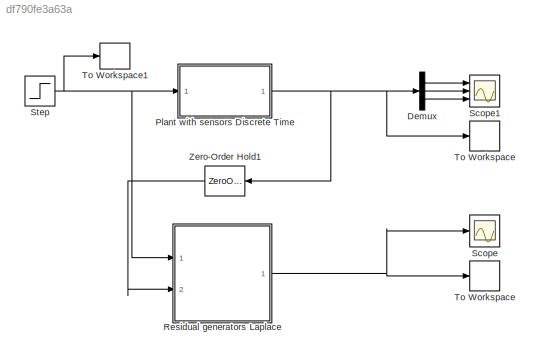
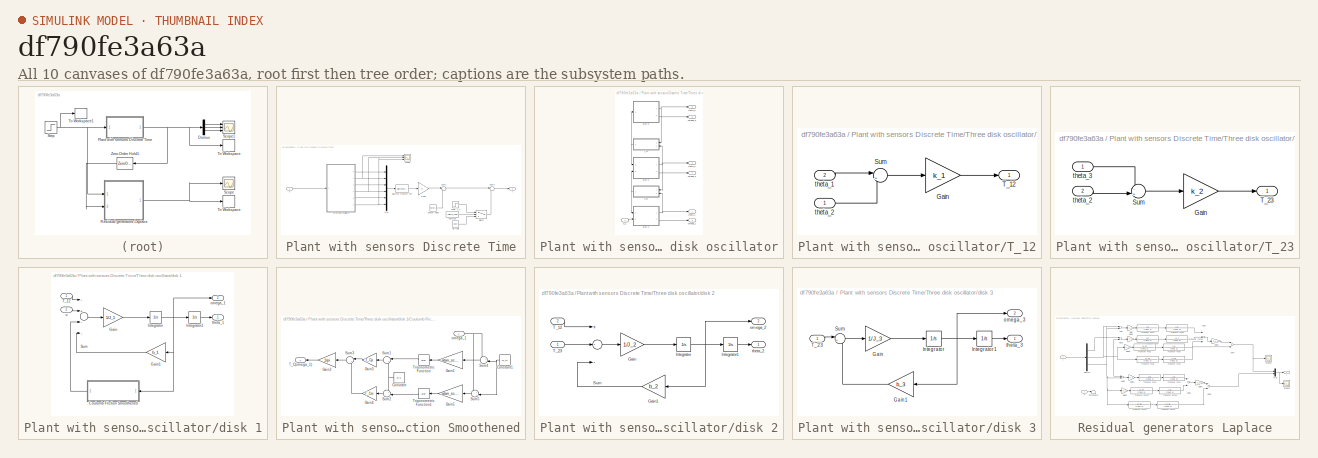
[diagram: thumbnail index - all 10 canvases of the model, root first then tree order]
MODEL slx_df790fe3a63a
KIND model
CONFIG AbsTol = auto
CONFIG EnableMultiTasking = off
CONFIG FixedStep = auto
CONFIG MaxStep = auto
CONFIG MinStep = auto
CONFIG RelTol = 1e-3
CONFIG SampleTimeConstraint = Unconstrained
CONFIG Solver = VariableStepAuto
CONFIG SolverName = VariableStepAuto
CONFIG StartTime = 0.0
CONFIG StopTime = simTime
BLOCK [Demux] Demux
  DisplayOption = bar
  Outputs = 3
  Ports = [1, 3]
BLOCK [SubSystem] Plant with sensors Discrete Time
  Ports = [1, 1]
  RequestExecContextInheritance = off
BLOCK [Constant] Plant with sensors Discrete Time/Constant
  Value = switch_fault
BLOCK [DiscreteTransferFcn] Plant with sensors Discrete Time/Discrete Transfer Fcn
  Denominator = [1]
  InputPortMap = u0
  Ports = [1, 1]
  SampleTime = T_s
BLOCK [Step] Plant with sensors Discrete Time/Fault: f_y
  After = f_m
  Before = [0;0;0]
  SampleTime = 0
  Time = f_m_time
BLOCK [Gain] Plant with sensors Discrete Time/Gain2
  Gain = C
  Multiplication = Matrix(K*u) (u vector)
  OutDataTypeStr = Inherit: Inherit via internal rule
  ParamDataTypeStr = Inherit: Inherit via internal rule
  SaturateOnIntegerOverflow = off
BLOCK [Mux] Plant with sensors Discrete Time/Mux
  DisplayOption = bar
  Inputs = 6
  Ports = [6, 1]
BLOCK [Constant] Plant with sensors Discrete Time/No fault
  Value = [0;0;0]
BLOCK [Scope] Plant with sensors Discrete Time/Scope
  Floating = off
  NumInputPorts = 3
  Ports = [3]
  ScopeSpecificationString = Simulink.scopes.TimeScopeBlockCfg('CurrentConfiguration', extmgr.ConfigurationSet(extmgr.Configuration('Core','General UI',true),extmgr.Configuration('Core','Source UI',true),extmgr.Configuration('Sources','WiredSimulink',true),extmgr.Configuration('Visuals','Time Domain',true,'SerializedDisplays',{struct('MinYLimReal','-0.1547','MaxYLimReal','0.14887','YLabelReal','','MinYLimMag','0.00000','MaxYL...<+2773ch>
BLOCK [RandomNumber] Plant with sensors Discrete Time/Sensor noise
  Mean = zeros(3,1)
  SampleTime = T_s
  Variance = sigma_meas
BLOCK [Sum] Plant with sensors Discrete Time/Sum1
  IconShape = round
  InputSameDT = off
  Inputs = |++
  OutDataTypeStr = Inherit: Inherit via internal rule
  Ports = [2, 1]
  SaturateOnIntegerOverflow = off
BLOCK [Sum] Plant with sensors Discrete Time/Sum2
  IconShape = round
  InputSameDT = off
  Inputs = |++
  OutDataTypeStr = Inherit: Inherit via internal rule
  Ports = [2, 1]
  SaturateOnIntegerOverflow = off
BLOCK [Switch] Plant with sensors Discrete Time/Switch
  Criteria = u2 > Threshold
  InputSameDT = off
  SaturateOnIntegerOverflow = off
BLOCK [SubSystem] Plant with sensors Discrete Time/Three disk oscillator
  Ports = [1, 6]
  RequestExecContextInheritance = off
BLOCK [SubSystem] Plant with sensors Discrete Time/Three disk oscillator/T_12
  Ports = [2, 1]
  RequestExecContextInheritance = off
BLOCK [Gain] Plant with sensors Discrete Time/Three disk oscillator/T_12/Gain
  Gain = k_1
  OutDataTypeStr = Inherit: Inherit via internal rule
  ParamDataTypeStr = Inherit: Inherit via internal rule
  SaturateOnIntegerOverflow = off
BLOCK [Sum] Plant with sensors Discrete Time/Three disk oscillator/T_12/Sum
  IconShape = round
  InputSameDT = off
  Inputs = |+-
  OutDataTypeStr = Inherit: Inherit via internal rule
  Ports = [2, 1]
  SaturateOnIntegerOverflow = off
BLOCK [Outport] Plant with sensors Discrete Time/Three disk oscillator/T_12/T_12
  IconDisplay = Port number
  VectorParamsAs1DForOutWhenUnconnected = off
BLOCK [Inport] Plant with sensors Discrete Time/Three disk oscillator/T_12/theta_1
  IconDisplay = Port number
  Port = 2
BLOCK [Inport] Plant with sensors Discrete Time/Three disk oscillator/T_12/theta_2
  IconDisplay = Port number
BLOCK [SubSystem] Plant with sensors Discrete Time/Three disk oscillator/T_23
  Ports = [2, 1]
  RequestExecContextInheritance = off
BLOCK [Gain] Plant with sensors Discrete Time/Three disk oscillator/T_23/Gain
  Gain = k_2
  OutDataTypeStr = Inherit: Inherit via internal rule
  ParamDataTypeStr = Inherit: Inherit via internal rule
  SaturateOnIntegerOverflow = off
BLOCK [Sum] Plant with sensors Discrete Time/Three disk oscillator/T_23/Sum
  IconShape = round
  InputSameDT = off
  Inputs = -+|
  OutDataTypeStr = Inherit: Inherit via internal rule
  Ports = [2, 1]
  SaturateOnIntegerOverflow = off
BLOCK [Outport] Plant with sensors Discrete Time/Three disk oscillator/T_23/T_23
  IconDisplay = Port number
  VectorParamsAs1DForOutWhenUnconnected = off
BLOCK [Inport] Plant with sensors Discrete Time/Three disk oscillator/T_23/theta_2
  IconDisplay = Port number
  Port = 2
BLOCK [Inport] Plant with sensors Discrete Time/Three disk oscillator/T_23/theta_3
  IconDisplay = Port number
BLOCK [SubSystem] Plant with sensors Discrete Time/Three disk oscillator/disk 1
  Ports = [2, 2]
  RequestExecContextInheritance = off
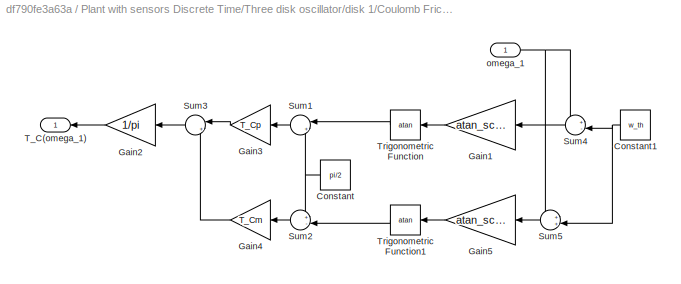
BLOCK [SubSystem] Plant with sensors Discrete Time/Three disk oscillator/disk 1/Coulomb Friction Smoothened
  Ports = [1, 1]
  RequestExecContextInheritance = off
BLOCK [Constant] Plant with sensors Discrete Time/Three disk oscillator/disk 1/Coulomb Friction Smoothened/Constant
  Value = pi/2
BLOCK [Constant] Plant with sensors Discrete Time/Three disk oscillator/disk 1/Coulomb Friction Smoothened/Constant1
  Value = w_th
BLOCK [Gain] Plant with sensors Discrete Time/Three disk oscillator/disk 1/Coulomb Friction Smoothened/Gain1
  Gain = atan_scale
  OutDataTypeStr = Inherit: Inherit via internal rule
  ParamDataTypeStr = Inherit: Inherit via internal rule
  SaturateOnIntegerOverflow = off
BLOCK [Gain] Plant with sensors Discrete Time/Three disk oscillator/disk 1/Coulomb Friction Smoothened/Gain2
  Gain = 1/pi
  OutDataTypeStr = Inherit: Inherit via internal rule
  ParamDataTypeStr = Inherit: Inherit via internal rule
  SaturateOnIntegerOverflow = off
BLOCK [Gain] Plant with sensors Discrete Time/Three disk oscillator/disk 1/Coulomb Friction Smoothened/Gain3
  Gain = T_Cp
  OutDataTypeStr = Inherit: Inherit via internal rule
  ParamDataTypeStr = Inherit: Inherit via internal rule
  SaturateOnIntegerOverflow = off
BLOCK [Gain] Plant with sensors Discrete Time/Three disk oscillator/disk 1/Coulomb Friction Smoothened/Gain4
  Gain = T_Cm
  OutDataTypeStr = Inherit: Inherit via internal rule
  ParamDataTypeStr = Inherit: Inherit via internal rule
  SaturateOnIntegerOverflow = off
BLOCK [Gain] Plant with sensors Discrete Time/Three disk oscillator/disk 1/Coulomb Friction Smoothened/Gain5
  Gain = atan_scale
  OutDataTypeStr = Inherit: Inherit via internal rule
  ParamDataTypeStr = Inherit: Inherit via internal rule
  SaturateOnIntegerOverflow = off
BLOCK [Sum] Plant with sensors Discrete Time/Three disk oscillator/disk 1/Coulomb Friction Smoothened/Sum1
  IconShape = round
  InputSameDT = off
  Inputs = |++
  OutDataTypeStr = Inherit: Inherit via internal rule
  Ports = [2, 1]
  SaturateOnIntegerOverflow = off
BLOCK [Sum] Plant with sensors Discrete Time/Three disk oscillator/disk 1/Coulomb Friction Smoothened/Sum2
  IconShape = round
  InputSameDT = off
  Inputs = +-|
  OutDataTypeStr = Inherit: Inherit via internal rule
  Ports = [2, 1]
  SaturateOnIntegerOverflow = off
BLOCK [Sum] Plant with sensors Discrete Time/Three disk oscillator/disk 1/Coulomb Friction Smoothened/Sum3
  IconShape = round
  InputSameDT = off
  Inputs = |+-
  OutDataTypeStr = Inherit: Inherit via internal rule
  Ports = [2, 1]
  SaturateOnIntegerOverflow = off
BLOCK [Sum] Plant with sensors Discrete Time/Three disk oscillator/disk 1/Coulomb Friction Smoothened/Sum4
  IconShape = round
  InputSameDT = off
  Inputs = +-|
  OutDataTypeStr = Inherit: Inherit via internal rule
  Ports = [2, 1]
  SaturateOnIntegerOverflow = off
BLOCK [Sum] Plant with sensors Discrete Time/Three disk oscillator/disk 1/Coulomb Friction Smoothened/Sum5
  IconShape = round
  InputSameDT = off
  Inputs = ++|
  OutDataTypeStr = Inherit: Inherit via internal rule
  Ports = [2, 1]
  SaturateOnIntegerOverflow = off
BLOCK [Outport] Plant with sensors Discrete Time/Three disk oscillator/disk 1/Coulomb Friction Smoothened/T_C(omega_1)
  IconDisplay = Port number
  VectorParamsAs1DForOutWhenUnconnected = off
BLOCK [Trigonometry] Plant with sensors Discrete Time/Three disk oscillator/disk 1/Coulomb Friction Smoothened/Trigonometric Function
  Operator = atan
  Ports = [1, 1]
BLOCK [Trigonometry] Plant with sensors Discrete Time/Three disk oscillator/disk 1/Coulomb Friction Smoothened/Trigonometric Function1
  Operator = atan
  Ports = [1, 1]
BLOCK [Inport] Plant with sensors Discrete Time/Three disk oscillator/disk 1/Coulomb Friction Smoothened/omega_1
  IconDisplay = Port number
BLOCK [Gain] Plant with sensors Discrete Time/Three disk oscillator/disk 1/Gain
  Gain = 1/J_1
  OutDataTypeStr = Inherit: Inherit via internal rule
  ParamDataTypeStr = Inherit: Inherit via internal rule
  SaturateOnIntegerOverflow = off
BLOCK [Gain] Plant with sensors Discrete Time/Three disk oscillator/disk 1/Gain1
  Gain = b_1
  OutDataTypeStr = Inherit: Inherit via internal rule
  ParamDataTypeStr = Inherit: Inherit via internal rule
  SaturateOnIntegerOverflow = off
BLOCK [Integrator] Plant with sensors Discrete Time/Three disk oscillator/disk 1/Integrator
  InitialCondition = x_0(2)
  Ports = [1, 1]
BLOCK [Integrator] Plant with sensors Discrete Time/Three disk oscillator/disk 1/Integrator1
  InitialCondition = x_0(1)
  Ports = [1, 1]
BLOCK [Sum] Plant with sensors Discrete Time/Three disk oscillator/disk 1/Sum
  InputSameDT = off
  Inputs = -+--
  OutDataTypeStr = Inherit: Inherit via internal rule
  Ports = [4, 1]
  SaturateOnIntegerOverflow = off
BLOCK [Inport] Plant with sensors Discrete Time/Three disk oscillator/disk 1/T_12
  IconDisplay = Port number
BLOCK [Outport] Plant with sensors Discrete Time/Three disk oscillator/disk 1/omega_1
  IconDisplay = Port number
  Port = 2
  VectorParamsAs1DForOutWhenUnconnected = off
BLOCK [Outport] Plant with sensors Discrete Time/Three disk oscillator/disk 1/theta_1
  IconDisplay = Port number
  VectorParamsAs1DForOutWhenUnconnected = off
BLOCK [Inport] Plant with sensors Discrete Time/Three disk oscillator/disk 1/u
  IconDisplay = Port number
  Port = 2
BLOCK [SubSystem] Plant with sensors Discrete Time/Three disk oscillator/disk 2
  Ports = [2, 2]
  RequestExecContextInheritance = off
BLOCK [Gain] Plant with sensors Discrete Time/Three disk oscillator/disk 2/Gain
  Gain = 1/J_2
  OutDataTypeStr = Inherit: Inherit via internal rule
  ParamDataTypeStr = Inherit: Inherit via internal rule
  SaturateOnIntegerOverflow = off
BLOCK [Gain] Plant with sensors Discrete Time/Three disk oscillator/disk 2/Gain1
  Gain = b_2
  OutDataTypeStr = Inherit: Inherit via internal rule
  ParamDataTypeStr = Inherit: Inherit via internal rule
  SaturateOnIntegerOverflow = off
BLOCK [Integrator] Plant with sensors Discrete Time/Three disk oscillator/disk 2/Integrator
  InitialCondition = x_0(4)
  Ports = [1, 1]
BLOCK [Integrator] Plant with sensors Discrete Time/Three disk oscillator/disk 2/Integrator1
  InitialCondition = x_0(3)
  Ports = [1, 1]
BLOCK [Sum] Plant with sensors Discrete Time/Three disk oscillator/disk 2/Sum
  InputSameDT = off
  Inputs = +--
  OutDataTypeStr = Inherit: Inherit via internal rule
  Ports = [3, 1]
  SaturateOnIntegerOverflow = off
BLOCK [Inport] Plant with sensors Discrete Time/Three disk oscillator/disk 2/T_12
  IconDisplay = Port number
  Port = 2
BLOCK [Inport] Plant with sensors Discrete Time/Three disk oscillator/disk 2/T_23
  IconDisplay = Port number
BLOCK [Outport] Plant with sensors Discrete Time/Three disk oscillator/disk 2/omega_2
  IconDisplay = Port number
  Port = 2
  VectorParamsAs1DForOutWhenUnconnected = off
BLOCK [Outport] Plant with sensors Discrete Time/Three disk oscillator/disk 2/theta_2
  IconDisplay = Port number
  VectorParamsAs1DForOutWhenUnconnected = off
BLOCK [SubSystem] Plant with sensors Discrete Time/Three disk oscillator/disk 3
  Ports = [1, 2]
  RequestExecContextInheritance = off
BLOCK [Gain] Plant with sensors Discrete Time/Three disk oscillator/disk 3/Gain
  Gain = 1/J_3
  OutDataTypeStr = Inherit: Inherit via internal rule
  ParamDataTypeStr = Inherit: Inherit via internal rule
  SaturateOnIntegerOverflow = off
BLOCK [Gain] Plant with sensors Discrete Time/Three disk oscillator/disk 3/Gain1
  Gain = b_3
  OutDataTypeStr = Inherit: Inherit via internal rule
  ParamDataTypeStr = Inherit: Inherit via internal rule
  SaturateOnIntegerOverflow = off
BLOCK [Integrator] Plant with sensors Discrete Time/Three disk oscillator/disk 3/Integrator
  InitialCondition = x_0(6)
  Ports = [1, 1]
BLOCK [Integrator] Plant with sensors Discrete Time/Three disk oscillator/disk 3/Integrator1
  InitialCondition = x_0(5)
  Ports = [1, 1]
BLOCK [Sum] Plant with sensors Discrete Time/Three disk oscillator/disk 3/Sum
  IconShape = round
  InputSameDT = off
  Inputs = |+-
  OutDataTypeStr = Inherit: Inherit via internal rule
  Ports = [2, 1]
  SaturateOnIntegerOverflow = off
BLOCK [Inport] Plant with sensors Discrete Time/Three disk oscillator/disk 3/T_23
  IconDisplay = Port number
BLOCK [Outport] Plant with sensors Discrete Time/Three disk oscillator/disk 3/omega_3
  IconDisplay = Port number
  Port = 2
  VectorParamsAs1DForOutWhenUnconnected = off
BLOCK [Outport] Plant with sensors Discrete Time/Three disk oscillator/disk 3/theta_3
  IconDisplay = Port number
  VectorParamsAs1DForOutWhenUnconnected = off
BLOCK [Outport] Plant with sensors Discrete Time/Three disk oscillator/omega_1
  IconDisplay = Port number
  Port = 2
  VectorParamsAs1DForOutWhenUnconnected = off
BLOCK [Outport] Plant with sensors Discrete Time/Three disk oscillator/omega_2
  IconDisplay = Port number
  Port = 4
  VectorParamsAs1DForOutWhenUnconnected = off
BLOCK [Outport] Plant with sensors Discrete Time/Three disk oscillator/omega_3
  IconDisplay = Port number
  Port = 6
  VectorParamsAs1DForOutWhenUnconnected = off
BLOCK [Outport] Plant with sensors Discrete Time/Three disk oscillator/theta_1
  IconDisplay = Port number
  VectorParamsAs1DForOutWhenUnconnected = off
BLOCK [Outport] Plant with sensors Discrete Time/Three disk oscillator/theta_2
  IconDisplay = Port number
  Port = 3
  VectorParamsAs1DForOutWhenUnconnected = off
BLOCK [Outport] Plant with sensors Discrete Time/Three disk oscillator/theta_3
  IconDisplay = Port number
  Port = 5
  VectorParamsAs1DForOutWhenUnconnected = off
BLOCK [Inport] Plant with sensors Discrete Time/Three disk oscillator/u_1
  IconDisplay = Port number
BLOCK [Inport] Plant with sensors Discrete Time/u
  IconDisplay = Port number
BLOCK [Outport] Plant with sensors Discrete Time/y
  IconDisplay = Port number
  VectorParamsAs1DForOutWhenUnconnected = off
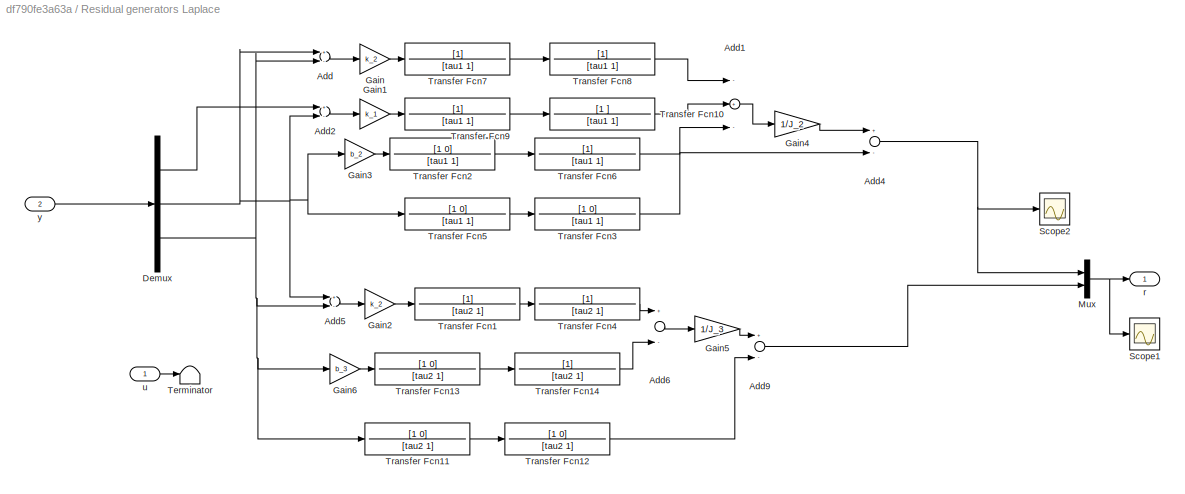
BLOCK [SubSystem] Residual generators Laplace
  Ports = [2, 1]
  RequestExecContextInheritance = off
BLOCK [Sum] Residual generators Laplace/Add
  InputSameDT = off
  Inputs = +-
  OutDataTypeStr = Inherit: Inherit via internal rule
  Ports = [2, 1]
  SaturateOnIntegerOverflow = off
BLOCK [Sum] Residual generators Laplace/Add1
  InputSameDT = off
  Inputs = -+-
  OutDataTypeStr = Inherit: Inherit via internal rule
  Ports = [3, 1]
  SaturateOnIntegerOverflow = off
BLOCK [Sum] Residual generators Laplace/Add2
  InputSameDT = off
  Inputs = +-
  OutDataTypeStr = Inherit: Inherit via internal rule
  Ports = [2, 1]
  SaturateOnIntegerOverflow = off
BLOCK [Sum] Residual generators Laplace/Add4
  InputSameDT = off
  Inputs = +-
  OutDataTypeStr = Inherit: Inherit via internal rule
  Ports = [2, 1]
  SaturateOnIntegerOverflow = off
BLOCK [Sum] Residual generators Laplace/Add5
  InputSameDT = off
  Inputs = +-
  OutDataTypeStr = Inherit: Inherit via internal rule
  Ports = [2, 1]
  SaturateOnIntegerOverflow = off
BLOCK [Sum] Residual generators Laplace/Add6
  InputSameDT = off
  Inputs = +-
  OutDataTypeStr = Inherit: Inherit via internal rule
  Ports = [2, 1]
  SaturateOnIntegerOverflow = off
BLOCK [Sum] Residual generators Laplace/Add9
  InputSameDT = off
  Inputs = +-
  OutDataTypeStr = Inherit: Inherit via internal rule
  Ports = [2, 1]
  SaturateOnIntegerOverflow = off
BLOCK [Demux] Residual generators Laplace/Demux
  DisplayOption = bar
  Outputs = 3
  Ports = [1, 3]
BLOCK [Gain] Residual generators Laplace/Gain
  Gain = k_2
  OutDataTypeStr = Inherit: Inherit via internal rule
  ParamDataTypeStr = Inherit: Inherit via internal rule
  SaturateOnIntegerOverflow = off
BLOCK [Gain] Residual generators Laplace/Gain1
  Gain = k_1
  OutDataTypeStr = Inherit: Inherit via internal rule
  ParamDataTypeStr = Inherit: Inherit via internal rule
  SaturateOnIntegerOverflow = off
BLOCK [Gain] Residual generators Laplace/Gain2
  Gain = k_2
  OutDataTypeStr = Inherit: Inherit via internal rule
  ParamDataTypeStr = Inherit: Inherit via internal rule
  SaturateOnIntegerOverflow = off
BLOCK [Gain] Residual generators Laplace/Gain3
  Gain = b_2
  OutDataTypeStr = Inherit: Inherit via internal rule
  ParamDataTypeStr = Inherit: Inherit via internal rule
  SaturateOnIntegerOverflow = off
BLOCK [Gain] Residual generators Laplace/Gain4
  Gain = 1/J_2
  OutDataTypeStr = Inherit: Inherit via internal rule
  ParamDataTypeStr = Inherit: Inherit via internal rule
  SaturateOnIntegerOverflow = off
BLOCK [Gain] Residual generators Laplace/Gain5
  Gain = 1/J_3
  OutDataTypeStr = Inherit: Inherit via internal rule
  ParamDataTypeStr = Inherit: Inherit via internal rule
  SaturateOnIntegerOverflow = off
BLOCK [Gain] Residual generators Laplace/Gain6
  Gain = b_3
  OutDataTypeStr = Inherit: Inherit via internal rule
  ParamDataTypeStr = Inherit: Inherit via internal rule
  SaturateOnIntegerOverflow = off
BLOCK [Mux] Residual generators Laplace/Mux
  DisplayOption = bar
  Inputs = 2
  Ports = [2, 1]
BLOCK [Scope] Residual generators Laplace/Scope1
  Floating = off
  NumInputPorts = 1
  Ports = [1]
  ScopeSpecificationString = Simulink.scopes.TimeScopeBlockCfg('CurrentConfiguration', extmgr.ConfigurationSet(extmgr.Configuration('Core','General UI',true),extmgr.Configuration('Core','Source UI',true),extmgr.Configuration('Sources','WiredSimulink',true,'DataLoggingVariableName','ScopeData2'),extmgr.Configuration('Visuals','Time Domain',true,'SerializedDisplays',{struct('MinYLimReal','-48.22014','MaxYLimReal','38.93087','YL...<+1475ch>
BLOCK [Scope] Residual generators Laplace/Scope2
  Floating = off
  NumInputPorts = 1
  Ports = [1]
  ScopeSpecificationString = Simulink.scopes.TimeScopeBlockCfg('CurrentConfiguration', extmgr.ConfigurationSet(extmgr.Configuration('Core','General UI',true),extmgr.Configuration('Core','Source UI',true),extmgr.Configuration('Sources','WiredSimulink',true,'DataLoggingVariableName','ScopeData2'),extmgr.Configuration('Visuals','Time Domain',true,'SerializedDisplays',{struct('MinYLimReal','-0.00011','MaxYLimReal','0.00026','YLab...<+1462ch>
BLOCK [Terminator] Residual generators Laplace/Terminator
BLOCK [TransferFcn] Residual generators Laplace/Transfer Fcn1
  Denominator = [tau2 1]
BLOCK [TransferFcn] Residual generators Laplace/Transfer Fcn10
  Denominator = [tau1 1]
  Numerator = [1 ]
BLOCK [TransferFcn] Residual generators Laplace/Transfer Fcn11
  Denominator = [tau2 1]
  Numerator = [1 0]
BLOCK [TransferFcn] Residual generators Laplace/Transfer Fcn12
  Denominator = [tau2 1]
  Numerator = [1 0]
BLOCK [TransferFcn] Residual generators Laplace/Transfer Fcn13
  Denominator = [tau2 1]
  Numerator = [1 0]
BLOCK [TransferFcn] Residual generators Laplace/Transfer Fcn14
  Denominator = [tau2 1]
BLOCK [TransferFcn] Residual generators Laplace/Transfer Fcn2
  Denominator = [tau1 1]
  Numerator = [1 0]
BLOCK [TransferFcn] Residual generators Laplace/Transfer Fcn3
  Denominator = [tau1 1]
  Numerator = [1 0]
BLOCK [TransferFcn] Residual generators Laplace/Transfer Fcn4
  Denominator = [tau2 1]
BLOCK [TransferFcn] Residual generators Laplace/Transfer Fcn5
  Denominator = [tau1 1]
  Numerator = [1 0]
BLOCK [TransferFcn] Residual generators Laplace/Transfer Fcn6
  Denominator = [tau1 1]
BLOCK [TransferFcn] Residual generators Laplace/Transfer Fcn7
  Denominator = [tau1 1]
BLOCK [TransferFcn] Residual generators Laplace/Transfer Fcn8
  Denominator = [tau1 1]
BLOCK [TransferFcn] Residual generators Laplace/Transfer Fcn9
  Denominator = [tau1 1]
BLOCK [Outport] Residual generators Laplace/r
  IconDisplay = Port number
  VectorParamsAs1DForOutWhenUnconnected = off
BLOCK [Inport] Residual generators Laplace/u
  IconDisplay = Port number
BLOCK [Inport] Residual generators Laplace/y
  IconDisplay = Port number
  Port = 2
BLOCK [Scope] Scope
  Floating = off
  NumInputPorts = 1
  Ports = [1]
  ScopeSpecificationString = Simulink.scopes.TimeScopeBlockCfg('CurrentConfiguration', extmgr.ConfigurationSet(extmgr.Configuration('Core','General UI',true),extmgr.Configuration('Core','Source UI',true),extmgr.Configuration('Sources','WiredSimulink',true,'DataLoggingVariableName','ScopeData3'),extmgr.Configuration('Visuals','Time Domain',true,'SerializedDisplays',{struct('MinYLimReal','-0.00018','MaxYLimReal','0.00084','YLab...<+1479ch>
BLOCK [Scope] Scope1
  Floating = off
  NumInputPorts = 3
  Ports = [3]
  ScopeSpecificationString = Simulink.scopes.TimeScopeBlockCfg('CurrentConfiguration', extmgr.ConfigurationSet(extmgr.Configuration('Core','General UI',true),extmgr.Configuration('Core','Source UI',true),extmgr.Configuration('Sources','WiredSimulink',true,'DataLoggingVariableName','ScopeData1'),extmgr.Configuration('Visuals','Time Domain',true,'SerializedDisplays',{struct('MinYLimReal','-36001.77411','MaxYLimReal','324015.706...<+1490ch>
BLOCK [Step] Step
  SampleTime = 0
  Time = 2
BLOCK [ToWorkspace] To Workspace
  FixptAsFi = on
  MaxDataPoints = inf
  Ports = [1]
  SampleTime = -1
  SaveFormat = Structure With Time
  VariableName = y
BLOCK [ToWorkspace] To Workspace 
  FixptAsFi = on
  MaxDataPoints = inf
  Ports = [1]
  SampleTime = -1
  SaveFormat = Structure With Time
  VariableName = r
BLOCK [ToWorkspace] To Workspace1
  FixptAsFi = on
  MaxDataPoints = inf
  Ports = [1]
  SampleTime = -1
  SaveFormat = Structure With Time
  VariableName = u
BLOCK [ZeroOrderHold] Zero-Order Hold1
  SampleTime = T_s
LINE Demux:1 -> Scope1:1
LINE Demux:2 -> Scope1:2
LINE Demux:3 -> Scope1:3
LINE Plant with sensors Discrete Time/Constant:1 -> Plant with sensors Discrete Time/Switch:2
LINE Plant with sensors Discrete Time/Discrete Transfer Fcn:1 -> Plant with sensors Discrete Time/Gain2:1
LINE Plant with sensors Discrete Time/Fault: f_y:1 -> Plant with sensors Discrete Time/Switch:1
LINE Plant with sensors Discrete Time/Gain2:1 -> Plant with sensors Discrete Time/Sum1:1
LINE Plant with sensors Discrete Time/Mux:1 -> Plant with sensors Discrete Time/Discrete Transfer Fcn:1
LINE Plant with sensors Discrete Time/No fault:1 -> Plant with sensors Discrete Time/Switch:3
LINE Plant with sensors Discrete Time/Sensor noise:1 -> Plant with sensors Discrete Time/Sum1:2
LINE Plant with sensors Discrete Time/Sum1:1 -> Plant with sensors Discrete Time/Sum2:1
LINE Plant with sensors Discrete Time/Sum2:1 -> Plant with sensors Discrete Time/y:1
LINE Plant with sensors Discrete Time/Switch:1 -> Plant with sensors Discrete Time/Sum2:2
LINE Plant with sensors Discrete Time/Three disk oscillator/T_12/Gain:1 -> Plant with sensors Discrete Time/Three disk oscillator/T_12/T_12:1
LINE Plant with sensors Discrete Time/Three disk oscillator/T_12/Sum:1 -> Plant with sensors Discrete Time/Three disk oscillator/T_12/Gain:1
LINE Plant with sensors Discrete Time/Three disk oscillator/T_12/theta_1:1 -> Plant with sensors Discrete Time/Three disk oscillator/T_12/Sum:1
LINE Plant with sensors Discrete Time/Three disk oscillator/T_12/theta_2:1 -> Plant with sensors Discrete Time/Three disk oscillator/T_12/Sum:2
NET Plant with sensors Discrete Time/Three disk oscillator/T_12:1 -> Plant with sensors Discrete Time/Three disk oscillator/disk 1:1, Plant with sensors Discrete Time/Three disk oscillator/disk 2:2
LINE Plant with sensors Discrete Time/Three disk oscillator/T_23/Gain:1 -> Plant with sensors Discrete Time/Three disk oscillator/T_23/T_23:1
LINE Plant with sensors Discrete Time/Three disk oscillator/T_23/Sum:1 -> Plant with sensors Discrete Time/Three disk oscillator/T_23/Gain:1
LINE Plant with sensors Discrete Time/Three disk oscillator/T_23/theta_2:1 -> Plant with sensors Discrete Time/Three disk oscillator/T_23/Sum:2
LINE Plant with sensors Discrete Time/Three disk oscillator/T_23/theta_3:1 -> Plant with sensors Discrete Time/Three disk oscillator/T_23/Sum:1
NET Plant with sensors Discrete Time/Three disk oscillator/T_23:1 -> Plant with sensors Discrete Time/Three disk oscillator/disk 2:1, Plant with sensors Discrete Time/Three disk oscillator/disk 3:1
NET Plant with sensors Discrete Time/Three disk oscillator/disk 1/Coulomb Friction Smoothened/Constant1:1 -> Plant with sensors Discrete Time/Three disk oscillator/disk 1/Coulomb Friction Smoothened/Sum4:2, Plant with sensors Discrete Time/Three disk oscillator/disk 1/Coulomb Friction Smoothened/Sum5:2
NET Plant with sensors Discrete Time/Three disk oscillator/disk 1/Coulomb Friction Smoothened/Constant:1 -> Plant with sensors Discrete Time/Three disk oscillator/disk 1/Coulomb Friction Smoothened/Sum1:2, Plant with sensors Discrete Time/Three disk oscillator/disk 1/Coulomb Friction Smoothened/Sum2:1
LINE Plant with sensors Discrete Time/Three disk oscillator/disk 1/Coulomb Friction Smoothened/Gain1:1 -> Plant with sensors Discrete Time/Three disk oscillator/disk 1/Coulomb Friction Smoothened/Trigonometric Function:1
LINE Plant with sensors Discrete Time/Three disk oscillator/disk 1/Coulomb Friction Smoothened/Gain2:1 -> Plant with sensors Discrete Time/Three disk oscillator/disk 1/Coulomb Friction Smoothened/T_C(omega_1):1
LINE Plant with sensors Discrete Time/Three disk oscillator/disk 1/Coulomb Friction Smoothened/Gain3:1 -> Plant with sensors Discrete Time/Three disk oscillator/disk 1/Coulomb Friction Smoothened/Sum3:1
LINE Plant with sensors Discrete Time/Three disk oscillator/disk 1/Coulomb Friction Smoothened/Gain4:1 -> Plant with sensors Discrete Time/Three disk oscillator/disk 1/Coulomb Friction Smoothened/Sum3:2
LINE Plant with sensors Discrete Time/Three disk oscillator/disk 1/Coulomb Friction Smoothened/Gain5:1 -> Plant with sensors Discrete Time/Three disk oscillator/disk 1/Coulomb Friction Smoothened/Trigonometric Function1:1
LINE Plant with sensors Discrete Time/Three disk oscillator/disk 1/Coulomb Friction Smoothened/Sum1:1 -> Plant with sensors Discrete Time/Three disk oscillator/disk 1/Coulomb Friction Smoothened/Gain3:1
LINE Plant with sensors Discrete Time/Three disk oscillator/disk 1/Coulomb Friction Smoothened/Sum2:1 -> Plant with sensors Discrete Time/Three disk oscillator/disk 1/Coulomb Friction Smoothened/Gain4:1
LINE Plant with sensors Discrete Time/Three disk oscillator/disk 1/Coulomb Friction Smoothened/Sum3:1 -> Plant with sensors Discrete Time/Three disk oscillator/disk 1/Coulomb Friction Smoothened/Gain2:1
LINE Plant with sensors Discrete Time/Three disk oscillator/disk 1/Coulomb Friction Smoothened/Sum4:1 -> Plant with sensors Discrete Time/Three disk oscillator/disk 1/Coulomb Friction Smoothened/Gain1:1
LINE Plant with sensors Discrete Time/Three disk oscillator/disk 1/Coulomb Friction Smoothened/Sum5:1 -> Plant with sensors Discrete Time/Three disk oscillator/disk 1/Coulomb Friction Smoothened/Gain5:1
LINE Plant with sensors Discrete Time/Three disk oscillator/disk 1/Coulomb Friction Smoothened/Trigonometric Function1:1 -> Plant with sensors Discrete Time/Three disk oscillator/disk 1/Coulomb Friction Smoothened/Sum2:2
LINE Plant with sensors Discrete Time/Three disk oscillator/disk 1/Coulomb Friction Smoothened/Trigonometric Function:1 -> Plant with sensors Discrete Time/Three disk oscillator/disk 1/Coulomb Friction Smoothened/Sum1:1
NET Plant with sensors Discrete Time/Three disk oscillator/disk 1/Coulomb Friction Smoothened/omega_1:1 -> Plant with sensors Discrete Time/Three disk oscillator/disk 1/Coulomb Friction Smoothened/Sum4:1, Plant with sensors Discrete Time/Three disk oscillator/disk 1/Coulomb Friction Smoothened/Sum5:1
LINE Plant with sensors Discrete Time/Three disk oscillator/disk 1/Coulomb Friction Smoothened:1 -> Plant with sensors Discrete Time/Three disk oscillator/disk 1/Sum:3
LINE Plant with sensors Discrete Time/Three disk oscillator/disk 1/Gain1:1 -> Plant with sensors Discrete Time/Three disk oscillator/disk 1/Sum:4
LINE Plant with sensors Discrete Time/Three disk oscillator/disk 1/Gain:1 -> Plant with sensors Discrete Time/Three disk oscillator/disk 1/Integrator:1
LINE Plant with sensors Discrete Time/Three disk oscillator/disk 1/Integrator1:1 -> Plant with sensors Discrete Time/Three disk oscillator/disk 1/theta_1:1
NET Plant with sensors Discrete Time/Three disk oscillator/disk 1/Integrator:1 -> Plant with sensors Discrete Time/Three disk oscillator/disk 1/Coulomb Friction Smoothened:1, Plant with sensors Discrete Time/Three disk oscillator/disk 1/Gain1:1, Plant with sensors Discrete Time/Three disk oscillator/disk 1/Integrator1:1, Plant with sensors Discrete Time/Three disk oscillator/disk 1/omega_1:1
LINE Plant with sensors Discrete Time/Three disk oscillator/disk 1/Sum:1 -> Plant with sensors Discrete Time/Three disk oscillator/disk 1/Gain:1
LINE Plant with sensors Discrete Time/Three disk oscillator/disk 1/T_12:1 -> Plant with sensors Discrete Time/Three disk oscillator/disk 1/Sum:1
LINE Plant with sensors Discrete Time/Three disk oscillator/disk 1/u:1 -> Plant with sensors Discrete Time/Three disk oscillator/disk 1/Sum:2
NET Plant with sensors Discrete Time/Three disk oscillator/disk 1:1 -> Plant with sensors Discrete Time/Three disk oscillator/T_12:2, Plant with sensors Discrete Time/Three disk oscillator/theta_1:1
LINE Plant with sensors Discrete Time/Three disk oscillator/disk 1:2 -> Plant with sensors Discrete Time/Three disk oscillator/omega_1:1
LINE Plant with sensors Discrete Time/Three disk oscillator/disk 2/Gain1:1 -> Plant with sensors Discrete Time/Three disk oscillator/disk 2/Sum:3
LINE Plant with sensors Discrete Time/Three disk oscillator/disk 2/Gain:1 -> Plant with sensors Discrete Time/Three disk oscillator/disk 2/Integrator:1
LINE Plant with sensors Discrete Time/Three disk oscillator/disk 2/Integrator1:1 -> Plant with sensors Discrete Time/Three disk oscillator/disk 2/theta_2:1
NET Plant with sensors Discrete Time/Three disk oscillator/disk 2/Integrator:1 -> Plant with sensors Discrete Time/Three disk oscillator/disk 2/Gain1:1, Plant with sensors Discrete Time/Three disk oscillator/disk 2/Integrator1:1, Plant with sensors Discrete Time/Three disk oscillator/disk 2/omega_2:1
LINE Plant with sensors Discrete Time/Three disk oscillator/disk 2/Sum:1 -> Plant with sensors Discrete Time/Three disk oscillator/disk 2/Gain:1
LINE Plant with sensors Discrete Time/Three disk oscillator/disk 2/T_12:1 -> Plant with sensors Discrete Time/Three disk oscillator/disk 2/Sum:1
LINE Plant with sensors Discrete Time/Three disk oscillator/disk 2/T_23:1 -> Plant with sensors Discrete Time/Three disk oscillator/disk 2/Sum:2
NET Plant with sensors Discrete Time/Three disk oscillator/disk 2:1 -> Plant with sensors Discrete Time/Three disk oscillator/T_12:1, Plant with sensors Discrete Time/Three disk oscillator/T_23:2, Plant with sensors Discrete Time/Three disk oscillator/theta_2:1
LINE Plant with sensors Discrete Time/Three disk oscillator/disk 2:2 -> Plant with sensors Discrete Time/Three disk oscillator/omega_2:1
LINE Plant with sensors Discrete Time/Three disk oscillator/disk 3/Gain1:1 -> Plant with sensors Discrete Time/Three disk oscillator/disk 3/Sum:2
LINE Plant with sensors Discrete Time/Three disk oscillator/disk 3/Gain:1 -> Plant with sensors Discrete Time/Three disk oscillator/disk 3/Integrator:1
LINE Plant with sensors Discrete Time/Three disk oscillator/disk 3/Integrator1:1 -> Plant with sensors Discrete Time/Three disk oscillator/disk 3/theta_3:1
NET Plant with sensors Discrete Time/Three disk oscillator/disk 3/Integrator:1 -> Plant with sensors Discrete Time/Three disk oscillator/disk 3/Gain1:1, Plant with sensors Discrete Time/Three disk oscillator/disk 3/Integrator1:1, Plant with sensors Discrete Time/Three disk oscillator/disk 3/omega_3:1
LINE Plant with sensors Discrete Time/Three disk oscillator/disk 3/Sum:1 -> Plant with sensors Discrete Time/Three disk oscillator/disk 3/Gain:1
LINE Plant with sensors Discrete Time/Three disk oscillator/disk 3/T_23:1 -> Plant with sensors Discrete Time/Three disk oscillator/disk 3/Sum:1
NET Plant with sensors Discrete Time/Three disk oscillator/disk 3:1 -> Plant with sensors Discrete Time/Three disk oscillator/T_23:1, Plant with sensors Discrete Time/Three disk oscillator/theta_3:1
LINE Plant with sensors Discrete Time/Three disk oscillator/disk 3:2 -> Plant with sensors Discrete Time/Three disk oscillator/omega_3:1
LINE Plant with sensors Discrete Time/Three disk oscillator/u_1:1 -> Plant with sensors Discrete Time/Three disk oscillator/disk 1:2
LINE Plant with sensors Discrete Time/Three disk oscillator:1 -> Plant with sensors Discrete Time/Mux:1
NET Plant with sensors Discrete Time/Three disk oscillator:2 -> Plant with sensors Discrete Time/Mux:2, Plant with sensors Discrete Time/Scope:1
LINE Plant with sensors Discrete Time/Three disk oscillator:3 -> Plant with sensors Discrete Time/Mux:3
NET Plant with sensors Discrete Time/Three disk oscillator:4 -> Plant with sensors Discrete Time/Mux:4, Plant with sensors Discrete Time/Scope:2
LINE Plant with sensors Discrete Time/Three disk oscillator:5 -> Plant with sensors Discrete Time/Mux:5
NET Plant with sensors Discrete Time/Three disk oscillator:6 -> Plant with sensors Discrete Time/Mux:6, Plant with sensors Discrete Time/Scope:3
LINE Plant with sensors Discrete Time/u:1 -> Plant with sensors Discrete Time/Three disk oscillator:1
NET Plant with sensors Discrete Time:1 -> Demux:1, To Workspace:1, Zero-Order Hold1:1
LINE Residual generators Laplace/Add1:1 -> Residual generators Laplace/Gain4:1
LINE Residual generators Laplace/Add2:1 -> Residual generators Laplace/Gain1:1
NET Residual generators Laplace/Add4:1 -> Residual generators Laplace/Mux:1, Residual generators Laplace/Scope2:1
LINE Residual generators Laplace/Add5:1 -> Residual generators Laplace/Gain2:1
LINE Residual generators Laplace/Add6:1 -> Residual generators Laplace/Gain5:1
LINE Residual generators Laplace/Add9:1 -> Residual generators Laplace/Mux:2
LINE Residual generators Laplace/Add:1 -> Residual generators Laplace/Gain:1
LINE Residual generators Laplace/Demux:1 -> Residual generators Laplace/Add2:1
NET Residual generators Laplace/Demux:2 -> Residual generators Laplace/Add2:2, Residual generators Laplace/Add5:1, Residual generators Laplace/Add:1, Residual generators Laplace/Gain3:1, Residual generators Laplace/Transfer Fcn5:1
NET Residual generators Laplace/Demux:3 -> Residual generators Laplace/Add5:2, Residual generators Laplace/Add:2, Residual generators Laplace/Gain6:1, Residual generators Laplace/Transfer Fcn11:1
LINE Residual generators Laplace/Gain1:1 -> Residual generators Laplace/Transfer Fcn9:1
LINE Residual generators Laplace/Gain2:1 -> Residual generators Laplace/Transfer Fcn1:1
LINE Residual generators Laplace/Gain3:1 -> Residual generators Laplace/Transfer Fcn2:1
LINE Residual generators Laplace/Gain4:1 -> Residual generators Laplace/Add4:1
LINE Residual generators Laplace/Gain5:1 -> Residual generators Laplace/Add9:1
LINE Residual generators Laplace/Gain6:1 -> Residual generators Laplace/Transfer Fcn13:1
LINE Residual generators Laplace/Gain:1 -> Residual generators Laplace/Transfer Fcn7:1
NET Residual generators Laplace/Mux:1 -> Residual generators Laplace/Scope1:1, Residual generators Laplace/r:1
LINE Residual generators Laplace/Transfer Fcn10:1 -> Residual generators Laplace/Add1:2
LINE Residual generators Laplace/Transfer Fcn11:1 -> Residual generators Laplace/Transfer Fcn12:1
LINE Residual generators Laplace/Transfer Fcn12:1 -> Residual generators Laplace/Add9:2
LINE Residual generators Laplace/Transfer Fcn13:1 -> Residual generators Laplace/Transfer Fcn14:1
LINE Residual generators Laplace/Transfer Fcn14:1 -> Residual generators Laplace/Add6:2
LINE Residual generators Laplace/Transfer Fcn1:1 -> Residual generators Laplace/Transfer Fcn4:1
LINE Residual generators Laplace/Transfer Fcn2:1 -> Residual generators Laplace/Transfer Fcn6:1
LINE Residual generators Laplace/Transfer Fcn3:1 -> Residual generators Laplace/Add4:2
LINE Residual generators Laplace/Transfer Fcn4:1 -> Residual generators Laplace/Add6:1
LINE Residual generators Laplace/Transfer Fcn5:1 -> Residual generators Laplace/Transfer Fcn3:1
LINE Residual generators Laplace/Transfer Fcn6:1 -> Residual generators Laplace/Add1:3
LINE Residual generators Laplace/Transfer Fcn7:1 -> Residual generators Laplace/Transfer Fcn8:1
LINE Residual generators Laplace/Transfer Fcn8:1 -> Residual generators Laplace/Add1:1
LINE Residual generators Laplace/Transfer Fcn9:1 -> Residual generators Laplace/Transfer Fcn10:1
LINE Residual generators Laplace/u:1 -> Residual generators Laplace/Terminator:1
LINE Residual generators Laplace/y:1 -> Residual generators Laplace/Demux:1
NET Residual generators Laplace:1 -> Scope:1, To Workspace :1
NET Step:1 -> Plant with sensors Discrete Time:1, Residual generators Laplace:1, To Workspace1:1
LINE Zero-Order Hold1:1 -> Residual generators Laplace:2
note: NET lines group one-source signal fan-out (src -> all destinations, sorted); 1:1 wires keep LINE
